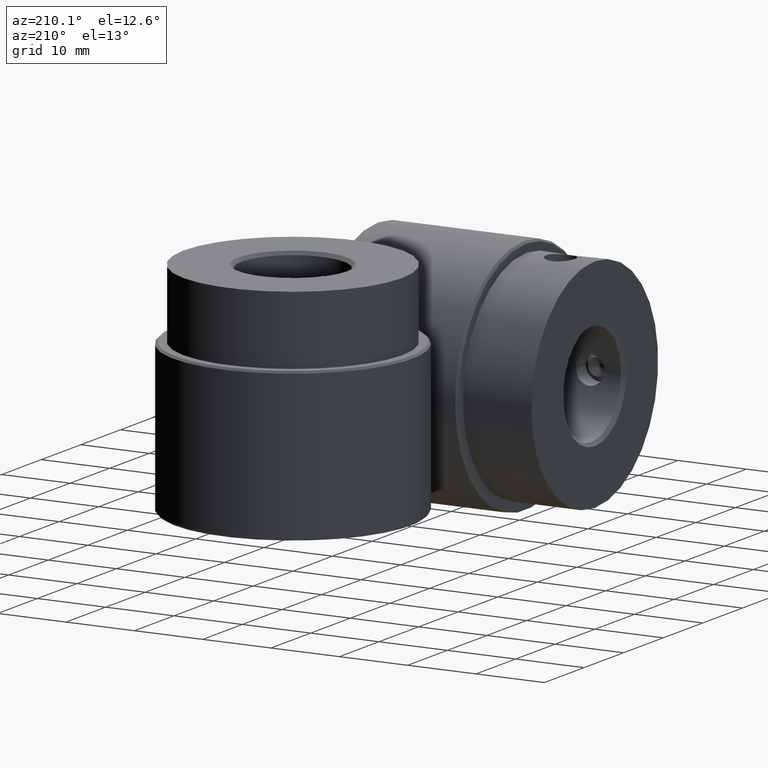
[diagram: clean part render]
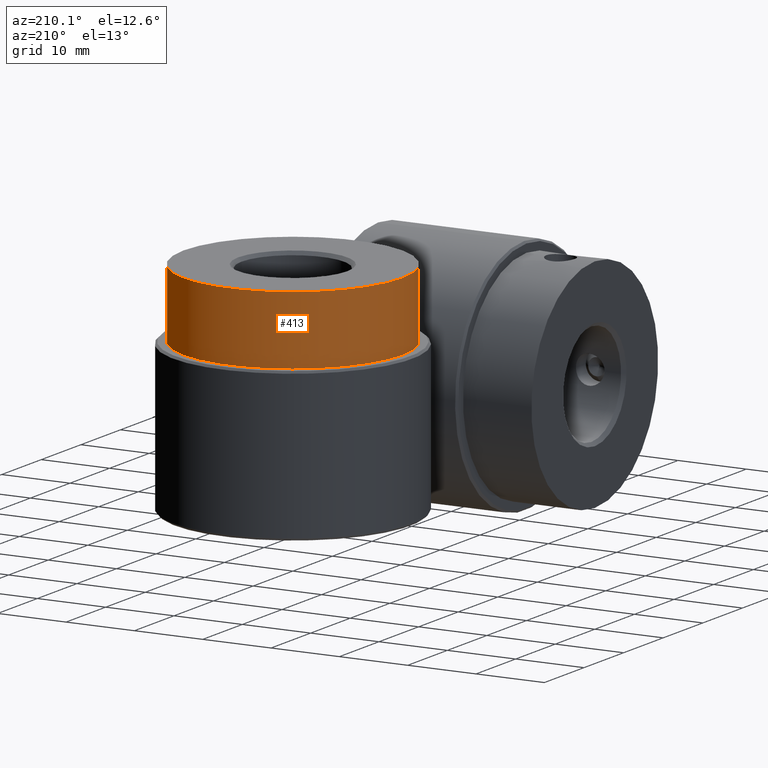
[diagram: same view with one face highlighted and labeled with its STEP entity id]
A machine part, auxiliary view. The second image highlights one B-rep face of the part: STEP entity #413.
In plain terms, the highlighted cylindrical surface (bore or boss wall) has radius 16 mm, axis along (0, -0, 1).
Its self-contained STEP definition (entity closure, byte-faithful):
#413 = ADVANCED_FACE( '', ( #495, #496, #497, #498 ), #499, .T. );
#495 = FACE_OUTER_BOUND( '', #695, .T. );
#496 = FACE_BOUND( '', #696, .T. );
#497 = FACE_OUTER_BOUND( '', #697, .T. );
#498 = FACE_BOUND( '', #698, .T. );
#499 = CYLINDRICAL_SURFACE( '', #699, 16.0000000000000 );
#695 = EDGE_LOOP( '', ( #899 ) );
#696 = EDGE_LOOP( '', ( #900 ) );
#697 = EDGE_LOOP( '', ( #901 ) );
#698 = EDGE_LOOP( '', ( #902 ) );
#699 = AXIS2_PLACEMENT_3D( '', #903, #904, #905 );
#899 = ORIENTED_EDGE( '', *, *, #1318, .T. );
#900 = ORIENTED_EDGE( '', *, *, #1319, .T. );
#901 = ORIENTED_EDGE( '', *, *, #1320, .F. );
#902 = ORIENTED_EDGE( '', *, *, #1321, .T. );
#903 = CARTESIAN_POINT( '', ( 0.000000000000000, 0.000000000000000, 32.0000000000000 ) );
#904 = DIRECTION( '', ( 0.000000000000000, -0.000000000000000, 1.00000000000000 ) );
#905 = DIRECTION( '', ( -1.00000000000000, 0.000000000000000, 0.000000000000000 ) );
#1318 = EDGE_CURVE( '', #1429, #1429, #1430, .T. );
#1319 = EDGE_CURVE( '', #1431, #1431, #1432, .T. );
#1320 = EDGE_CURVE( '', #1433, #1433, #1434, .T. );
#1321 = EDGE_CURVE( '', #1435, #1435, #1436, .T. );
#1429 = VERTEX_POINT( '', #1621 );
#1430 = CIRCLE( '', #1622, 16.0000000000000 );
#1431 = VERTEX_POINT( '', #1623 );
#1432 = B_SPLINE_CURVE_WITH_KNOTS( '', 3, ( #1624, #1625, #1626, #1627, #1628, #1629, #1630, #1631, #1632, #1633, #1634, #1635, #1636, #1637, #1638, #1639, #1640, #1641, #1642, #1643, #1644, #1645, #1646, #1647, #1648, #1649, #1650, #1651, #1652, #1653, #1654, #1655, #1656, #1657, #1658, #1659, #1660, #1661, #1662, #1663, #1664, #1665, #1666, #1667, #1668, #1669, #1670, #1671, #1672, #1673, #1674, #1675, #1676, #1677 ), .UNSPECIFIED., .T., .F., ( 2, 2, 2, 2, 2, 2, 2, 2, 2, 2, 2, 2, 2, 2, 2, 2, 2, 2, 2, 2, 2, 2, 2, 2, 2, 2, 2, 2, 2 ), ( -0.000821481273271220, 0.000000000000000, 0.000410740636635608, 0.000821481273271216, 0.00123222190990682, 0.00164296254654243, 0.00246444381981365, 0.00328592509308487, 0.00369666572972047, 0.00410740636635608, 0.00451814700299169, 0.00492888763962730, 0.00533962827626291, 0.00575036891289852, 0.00616110954953413, 0.00657185018616974, 0.00739333145944096, 0.00821481273271219, 0.00862555336934781, 0.00903629400598342, 0.00944703464261903, 0.00985777527925465, 0.0102685159158903, 0.0106792565525259, 0.0110899971891615, 0.0115007378257971, 0.0123222190990683, 0.0131437003723395, 0.0135544410089751 ), .UNSPECIFIED. );
#1433 = VERTEX_POINT( '', #1678 );
#1434 = CIRCLE( '', #1679, 16.0000000000000 );
#1435 = VERTEX_POINT( '', #1680 );
#1436 = B_SPLINE_CURVE_WITH_KNOTS( '', 3, ( #1681, #1682, #1683, #1684, #1685, #1686, #1687, #1688, #1689, #1690, #1691, #1692, #1693, #1694, #1695, #1696, #1697, #1698, #1699, #1700, #1701, #1702, #1703, #1704, #1705, #1706, #1707, #1708, #1709, #1710, #1711, #1712, #1713, #1714, #1715, #1716, #1717, #1718, #1719, #1720, #1721, #1722, #1723, #1724, #1725, #1726, #1727, #1728, #1729, #1730, #1731, #1732, #1733, #1734 ), .UNSPECIFIED., .T., .F., ( 2, 2, 2, 2, 2, 2, 2, 2, 2, 2, 2, 2, 2, 2, 2, 2, 2, 2, 2, 2, 2, 2, 2, 2, 2, 2, 2, 2, 2 ), ( -0.000821481273271220, 0.000000000000000, 0.000410740636635609, 0.000821481273271217, 0.00123222190990683, 0.00164296254654244, 0.00246444381981365, 0.00328592509308487, 0.00369666572972048, 0.00410740636635609, 0.00451814700299170, 0.00492888763962731, 0.00533962827626291, 0.00575036891289852, 0.00616110954953413, 0.00657185018616974, 0.00739333145944097, 0.00821481273271219, 0.00862555336934781, 0.00903629400598342, 0.00944703464261904, 0.00985777527925465, 0.0102685159158903, 0.0106792565525259, 0.0110899971891615, 0.0115007378257971, 0.0123222190990683, 0.0131437003723395, 0.0135544410089752 ), .UNSPECIFIED. );
#1621 = CARTESIAN_POINT( '', ( 16.0000000000000, 0.000000000000000, 22.0000000000000 ) );
#1622 = AXIS2_PLACEMENT_3D( '', #2382, #2383, #2384 );
#1623 = CARTESIAN_POINT( '', ( 2.10000000000000, -15.8615888233178, 27.0000000000000 ) );
#1624 = CARTESIAN_POINT( '', ( 2.10000000000000, -15.8615888233178, 27.2777932775223 ) );
#1625 = CARTESIAN_POINT( '', ( 2.10000000000000, -15.8615888233178, 26.8611033612389 ) );
#1626 = CARTESIAN_POINT( '', ( 2.08635581446083, -15.8634121547480, 26.7245580671958 ) );
#1627 = CARTESIAN_POINT( '', ( 2.03292364141029, -15.8703480505040, 26.4559684649981 ) );
#1628 = CARTESIAN_POINT( '', ( 1.99247621996469, -15.8755428328556, 26.3225209415786 ) );
#1629 = CARTESIAN_POINT( '', ( 1.88702003070990, -15.8884227388579, 26.0682839673893 ) );
#1630 = CARTESIAN_POINT( '', ( 1.82250920129672, -15.8960477984948, 25.9477263475449 ) );
#1631 = CARTESIAN_POINT( '', ( 1.67012272309321, -15.9127799422556, 25.7195665896775 ) );
#1632 = CARTESIAN_POINT( '', ( 1.58152483061564, -15.9219415535692, 25.6116557270527 ) );
#1633 = CARTESIAN_POINT( '', ( 1.29124786471574, -15.9489953743921, 25.3214406795753 ) );
#1634 = CARTESIAN_POINT( '', ( 1.05719744340015, -15.9670383057835, 25.1650259309329 ) );
#1635 = CARTESIAN_POINT( '', ( 0.551957261342679, -15.9924770399817, 24.9554610666138 ) );
#1636 = CARTESIAN_POINT( '', ( 0.275404739234678, -15.9999798830529, 24.9001532720015 ) );
#1637 = CARTESIAN_POINT( '', ( -0.135945553331736, -16.0000099941735, 24.8999238539046 ) );
#1638 = CARTESIAN_POINT( '', ( -0.275243775083987, -15.9981999724855, 24.9135893153501 ) );
#1639 = CARTESIAN_POINT( '', ( -0.544684468878242, -15.9912938915123, 24.9672217262804 ) );
#1640 = CARTESIAN_POINT( '', ( -0.675660384498615, -15.9862349423493, 25.0069025804134 ) );
#1641 = CARTESIAN_POINT( '', ( -0.930090992518695, -15.9734515785665, 25.1121745248092 ) );
#1642 = CARTESIAN_POINT( '', ( -1.05285897246712, -15.9657284013057, 25.1778629704565 ) );
#1643 = CARTESIAN_POINT( '', ( -1.28024691556734, -15.9491054054873, 25.3297715109847 ) );
#1644 = CARTESIAN_POINT( '', ( -1.38640559886927, -15.9401242251139, 25.4166301096202 ) );
#1645 = CARTESIAN_POINT( '', ( -1.58233900785123, -15.9218681083870, 25.6124179452841 ) );
#1646 = CARTESIAN_POINT( '', ( -1.66912452570970, -15.9128839690113, 25.7183150625489 ) );
#1647 = CARTESIAN_POINT( '', ( -1.82122004567288, -15.8961948414953, 25.9455567789332 ) );
#1648 = CARTESIAN_POINT( '', ( -1.88706076453775, -15.8884178442497, 26.0683715134608 ) );
#1649 = CARTESIAN_POINT( '', ( -1.99248324801768, -15.8755418940236, 26.3225485461244 ) );
#1650 = CARTESIAN_POINT( '', ( -2.03227358637723, -15.8704316889692, 26.4534388412930 ) );
#1651 = CARTESIAN_POINT( '', ( -2.08615127123067, -15.8634394378290, 26.7228034927413 ) );
#1652 = CARTESIAN_POINT( '', ( -2.09994806154400, -15.8615956997254, 26.8620890452062 ) );
#1653 = CARTESIAN_POINT( '', ( -2.10010342755410, -15.8615751299955, 27.2734424329063 ) );
#1654 = CARTESIAN_POINT( '', ( -2.04506969604011, -15.8691144309711, 27.5500350524754 ) );
#1655 = CARTESIAN_POINT( '', ( -1.83588485110921, -15.8946729975293, 28.0556398221368 ) );
#1656 = CARTESIAN_POINT( '', ( -1.67973875759259, -15.9127686622094, 28.2897391455326 ) );
#1657 = CARTESIAN_POINT( '', ( -1.38964014496125, -15.9398347690683, 28.5803915992030 ) );
#1658 = CARTESIAN_POINT( '', ( -1.28175015737823, -15.9489864220583, 28.6691046426196 ) );
#1659 = CARTESIAN_POINT( '', ( -1.05387450176323, -15.9656631522612, 28.8215768741634 ) );
#1660 = CARTESIAN_POINT( '', ( -0.933398094849122, -15.9732579151091, 28.8861922513116 ) );
#1661 = CARTESIAN_POINT( '', ( -0.679159728365248, -15.9860859027290, 28.9919074465804 ) );
#1662 = CARTESIAN_POINT( '', ( -0.545829735385326, -15.9912507978191, 29.0324394290627 ) );
#1663 = CARTESIAN_POINT( '', ( -0.277350715051756, -15.9981595428862, 29.0861008397726 ) );
#1664 = CARTESIAN_POINT( '', ( -0.140723835392383, -15.9999836509126, 29.0998754354758 ) );
#1665 = CARTESIAN_POINT( '', ( 0.136981238763537, -16.0000161302276, 29.1001228970203 ) );
#1666 = CARTESIAN_POINT( '', ( 0.273528191602161, -15.9982261682415, 29.0866087871906 ) );
#1667 = CARTESIAN_POINT( '', ( 0.542202471829373, -15.9913750090901, 29.0334134803144 ) );
#1668 = CARTESIAN_POINT( '', ( 0.675741402294749, -15.9862308832637, 28.9930640086416 ) );
#1669 = CARTESIAN_POINT( '', ( 0.930012856770504, -15.9734554928491, 28.8878576936727 ) );
#1670 = CARTESIAN_POINT( '', ( 1.05063711430159, -15.9658782752547, 28.8234564918039 ) );
#1671 = CARTESIAN_POINT( '', ( 1.27900503075367, -15.9492085564615, 28.6712205284631 ) );
#1672 = CARTESIAN_POINT( '', ( 1.38696519067723, -15.9400684050729, 28.5827325658933 ) );
#1673 = CARTESIAN_POINT( '', ( 1.67739093768151, -15.9130189604737, 28.2927563201711 ) );
#1674 = CARTESIAN_POINT( '', ( 1.83403503205022, -15.8948893118829, 28.0588256148226 ) );
#1675 = CARTESIAN_POINT( '', ( 2.04404814601695, -15.8692488137454, 27.5537719369529 ) );
#1676 = CARTESIAN_POINT( '', ( 2.10000000000000, -15.8615888233178, 27.2777932775223 ) );
#1677 = CARTESIAN_POINT( '', ( 2.10000000000000, -15.8615888233178, 26.8611033612389 ) );
#1678 = CARTESIAN_POINT( '', ( 16.0000000000000, 0.000000000000000, 32.0000000000000 ) );
#1679 = AXIS2_PLACEMENT_3D( '', #2385, #2386, #2387 );
#1680 = CARTESIAN_POINT( '', ( 15.8615888233178, 2.10000000000000, 27.0000000000000 ) );
#1681 = CARTESIAN_POINT( '', ( 15.8615888233178, 2.10000000000000, 27.2777932775222 ) );
#1682 = CARTESIAN_POINT( '', ( 15.8615888233178, 2.10000000000000, 26.8611033612389 ) );
#1683 = CARTESIAN_POINT( '', ( 15.8634121547480, 2.08635581446083, 26.7245580671958 ) );
#1684 = CARTESIAN_POINT( '', ( 15.8703480505040, 2.03292364141029, 26.4559684649981 ) );
#1685 = CARTESIAN_POINT( '', ( 15.8755428328556, 1.99247621996469, 26.3225209415786 ) );
#1686 = CARTESIAN_POINT( '', ( 15.8884227388579, 1.88702003070990, 26.0682839673893 ) );
#1687 = CARTESIAN_POINT( '', ( 15.8960477984948, 1.82250920129672, 25.9477263475449 ) );
#1688 = CARTESIAN_POINT( '', ( 15.9127799422556, 1.67012272309321, 25.7195665896775 ) );
#1689 = CARTESIAN_POINT( '', ( 15.9219415535692, 1.58152483061564, 25.6116557270527 ) );
#1690 = CARTESIAN_POINT( '', ( 15.9489953743921, 1.29124786471574, 25.3214406795753 ) );
#1691 = CARTESIAN_POINT( '', ( 15.9670383057835, 1.05719744340014, 25.1650259309329 ) );
#1692 = CARTESIAN_POINT( '', ( 15.9924770399817, 0.551957261342677, 24.9554610666138 ) );
#1693 = CARTESIAN_POINT( '', ( 15.9999798830529, 0.275404739234676, 24.9001532720016 ) );
#1694 = CARTESIAN_POINT( '', ( 16.0000099941735, -0.135945553331738, 24.8999238539046 ) );
#1695 = CARTESIAN_POINT( '', ( 15.9981999724855, -0.275243775083988, 24.9135893153501 ) );
#1696 = CARTESIAN_POINT( '', ( 15.9912938915123, -0.544684468878243, 24.9672217262804 ) );
#1697 = CARTESIAN_POINT( '', ( 15.9862349423493, -0.675660384498616, 25.0069025804134 ) );
#1698 = CARTESIAN_POINT( '', ( 15.9734515785665, -0.930090992518697, 25.1121745248092 ) );
#1699 = CARTESIAN_POINT( '', ( 15.9657284013057, -1.05285897246712, 25.1778629704565 ) );
#1700 = CARTESIAN_POINT( '', ( 15.9491054054873, -1.28024691556734, 25.3297715109847 ) );
#1701 = CARTESIAN_POINT( '', ( 15.9401242251139, -1.38640559886927, 25.4166301096202 ) );
#1702 = CARTESIAN_POINT( '', ( 15.9218681083870, -1.58233900785123, 25.6124179452841 ) );
#1703 = CARTESIAN_POINT( '', ( 15.9128839690113, -1.66912452570970, 25.7183150625490 ) );
#1704 = CARTESIAN_POINT( '', ( 15.8961948414953, -1.82122004567288, 25.9455567789332 ) );
#1705 = CARTESIAN_POINT( '', ( 15.8884178442497, -1.88706076453775, 26.0683715134608 ) );
#1706 = CARTESIAN_POINT( '', ( 15.8755418940236, -1.99248324801768, 26.3225485461244 ) );
#1707 = CARTESIAN_POINT( '', ( 15.8704316889692, -2.03227358637723, 26.4534388412930 ) );
#1708 = CARTESIAN_POINT( '', ( 15.8634394378290, -2.08615127123067, 26.7228034927413 ) );
#1709 = CARTESIAN_POINT( '', ( 15.8615956997254, -2.09994806154400, 26.8620890452063 ) );
#1710 = CARTESIAN_POINT( '', ( 15.8615751299955, -2.10010342755410, 27.2734424329063 ) );
#1711 = CARTESIAN_POINT( '', ( 15.8691144309712, -2.04506969604011, 27.5500350524755 ) );
#1712 = CARTESIAN_POINT( '', ( 15.8946729975293, -1.83588485110921, 28.0556398221368 ) );
#1713 = CARTESIAN_POINT( '', ( 15.9127686622094, -1.67973875759259, 28.2897391455326 ) );
#1714 = CARTESIAN_POINT( '', ( 15.9398347690683, -1.38964014496125, 28.5803915992031 ) );
#1715 = CARTESIAN_POINT( '', ( 15.9489864220583, -1.28175015737823, 28.6691046426196 ) );
#1716 = CARTESIAN_POINT( '', ( 15.9656631522612, -1.05387450176323, 28.8215768741634 ) );
#1717 = CARTESIAN_POINT( '', ( 15.9732579151091, -0.933398094849122, 28.8861922513116 ) );
#1718 = CARTESIAN_POINT( '', ( 15.9860859027290, -0.679159728365248, 28.9919074465805 ) );
#1719 = CARTESIAN_POINT( '', ( 15.9912507978191, -0.545829735385327, 29.0324394290627 ) );
#1720 = CARTESIAN_POINT( '', ( 15.9981595428862, -0.277350715051756, 29.0861008397726 ) );
#1721 = CARTESIAN_POINT( '', ( 15.9999836509126, -0.140723835392383, 29.0998754354758 ) );
#1722 = CARTESIAN_POINT( '', ( 16.0000161302276, 0.136981238763536, 29.1001228970203 ) );
#1723 = CARTESIAN_POINT( '', ( 15.9982261682415, 0.273528191602160, 29.0866087871906 ) );
#1724 = CARTESIAN_POINT( '', ( 15.9913750090901, 0.542202471829372, 29.0334134803144 ) );
#1725 = CARTESIAN_POINT( '', ( 15.9862308832637, 0.675741402294751, 28.9930640086416 ) );
#1726 = CARTESIAN_POINT( '', ( 15.9734554928491, 0.930012856770506, 28.8878576936727 ) );
#1727 = CARTESIAN_POINT( '', ( 15.9658782752547, 1.05063711430159, 28.8234564918039 ) );
#1728 = CARTESIAN_POINT( '', ( 15.9492085564615, 1.27900503075367, 28.6712205284631 ) );
#1729 = CARTESIAN_POINT( '', ( 15.9400684050729, 1.38696519067723, 28.5827325658933 ) );
#1730 = CARTESIAN_POINT( '', ( 15.9130189604737, 1.67739093768151, 28.2927563201711 ) );
#1731 = CARTESIAN_POINT( '', ( 15.8948893118829, 1.83403503205022, 28.0588256148226 ) );
#1732 = CARTESIAN_POINT( '', ( 15.8692488137454, 2.04404814601695, 27.5537719369529 ) );
#1733 = CARTESIAN_POINT( '', ( 15.8615888233178, 2.10000000000000, 27.2777932775222 ) );
#1734 = CARTESIAN_POINT( '', ( 15.8615888233178, 2.10000000000000, 26.8611033612389 ) );
#2382 = CARTESIAN_POINT( '', ( 0.000000000000000, 0.000000000000000, 22.0000000000000 ) );
#2383 = DIRECTION( '', ( 0.000000000000000, 0.000000000000000, 1.00000000000000 ) );
#2384 = DIRECTION( '', ( 1.00000000000000, 0.000000000000000, 0.000000000000000 ) );
#2385 = CARTESIAN_POINT( '', ( 0.000000000000000, 0.000000000000000, 32.0000000000000 ) );
#2386 = DIRECTION( '', ( 0.000000000000000, 0.000000000000000, 1.00000000000000 ) );
#2387 = DIRECTION( '', ( 1.00000000000000, 0.000000000000000, 0.000000000000000 ) );